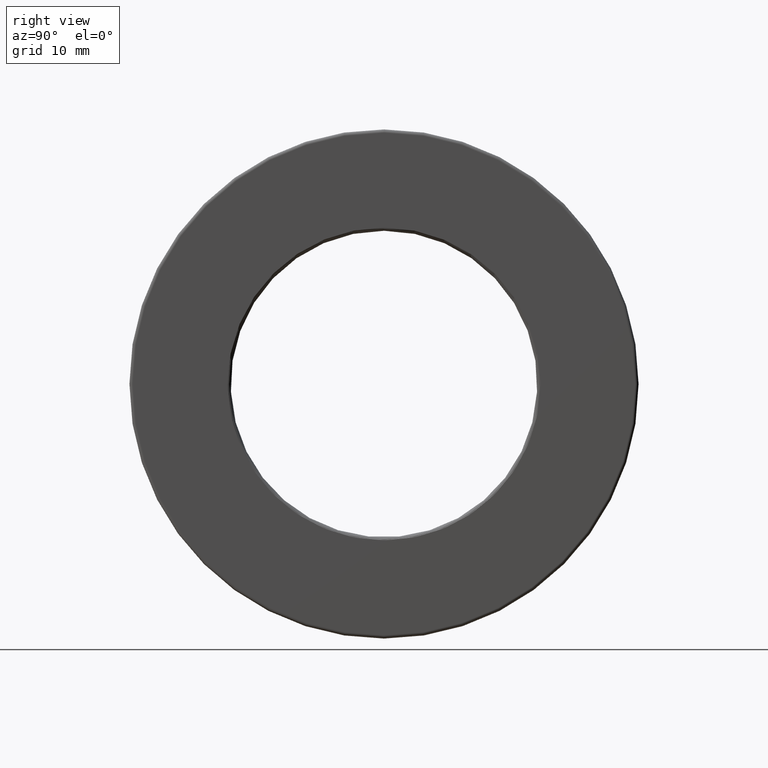
[diagram: clean part render]
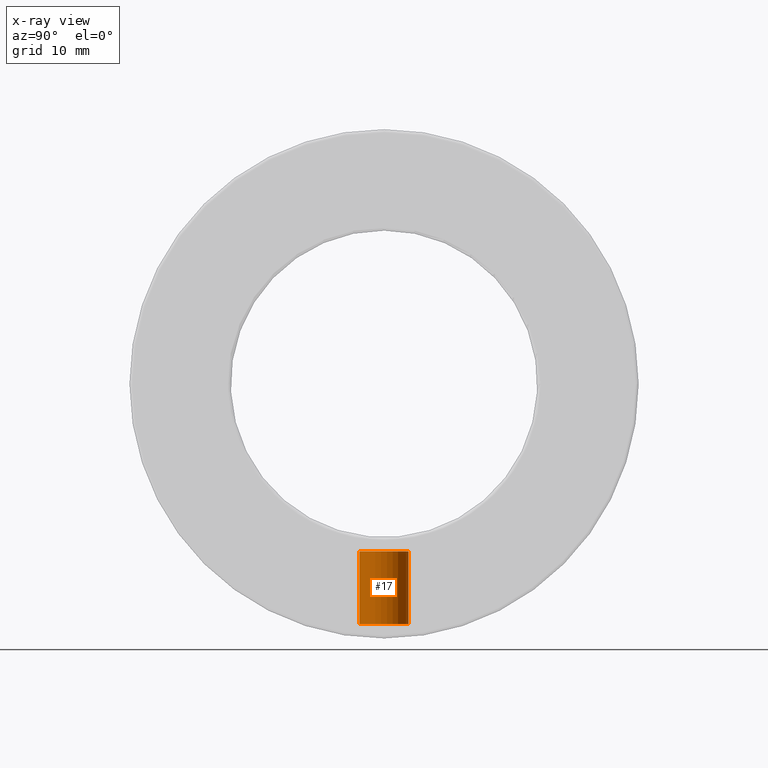
[diagram: x-ray — body ghosted, one internal face saturated and labeled with its STEP entity id]
A machine part, right view, then the same camera in x-ray: the body is ghosted and one INTERNAL B-rep face — a face not visible from any outside direction — is saturated and labeled: STEP entity #17.
In plain terms, the highlighted cylindrical surface (bore or boss wall) has radius 3.9624 mm, axis along (0, -0, -1).
Its self-contained STEP definition (entity closure, byte-faithful):
#17 = ADVANCED_FACE ( 'NONE', ( #832, #1301 ), #710, .T. ) ;
#35 = CIRCLE ( 'NONE', #1068, 0.1559999999999998600 ) ;
#122 = DIRECTION ( 'NONE',  ( 0.0000000000000000000, 1.000000000000000000, -3.502369222646491400E-015 ) ) ;
#438 = EDGE_LOOP ( 'NONE', ( #931 ) ) ;
#566 = CARTESIAN_POINT ( 'NONE',  ( 0.0000000000000000000, 0.1559999999999963100, -1.058750000000000700 ) ) ;
#626 = EDGE_CURVE ( 'NONE', #947, #947, #35, .T. ) ;
#664 = CARTESIAN_POINT ( 'NONE',  ( 0.0000000000000000000, -5.304869459204787800E-015, -1.519375000000000600 ) ) ;
#693 = DIRECTION ( 'NONE',  ( 0.0000000000000000000, -3.491481338843133400E-015, -1.000000000000000000 ) ) ;
#710 = CYLINDRICAL_SURFACE ( 'NONE', #849, 0.1559999999999999200 ) ;
#716 = CIRCLE ( 'NONE', #1030, 0.1560000000000000000 ) ;
#805 = DIRECTION ( 'NONE',  ( 0.0000000000000000000, 1.000000000000000000, -3.491481338843133400E-015 ) ) ;
#832 = FACE_OUTER_BOUND ( 'NONE', #438, .T. ) ;
#849 = AXIS2_PLACEMENT_3D ( 'NONE', #1366, #693, #805 ) ;
#880 = DIRECTION ( 'NONE',  ( 0.0000000000000000000, -3.491481338843133400E-015, -1.000000000000000000 ) ) ;
#931 = ORIENTED_EDGE ( 'NONE', *, *, #1468, .T. ) ;
#947 = VERTEX_POINT ( 'NONE', #1040 ) ;
#1030 = AXIS2_PLACEMENT_3D ( 'NONE', #1265, #1158, #122 ) ;
#1040 = CARTESIAN_POINT ( 'NONE',  ( 0.0000000000000000000, 0.1559999999999945600, -1.519375000000001000 ) ) ;
#1068 = AXIS2_PLACEMENT_3D ( 'NONE', #664, #880, #1230 ) ;
#1158 = DIRECTION ( 'NONE',  ( 0.0000000000000000000, -3.491481338843133400E-015, -1.000000000000000000 ) ) ;
#1230 = DIRECTION ( 'NONE',  ( 0.0000000000000000000, 1.000000000000000000, -3.502369222646494500E-015 ) ) ;
#1265 = CARTESIAN_POINT ( 'NONE',  ( 0.0000000000000000000, -3.696605867500168300E-015, -1.058750000000000100 ) ) ;
#1301 = FACE_OUTER_BOUND ( 'NONE', #1352, .T. ) ;
#1352 = EDGE_LOOP ( 'NONE', ( #1358 ) ) ;
#1358 = ORIENTED_EDGE ( 'NONE', *, *, #626, .F. ) ;
#1366 = CARTESIAN_POINT ( 'NONE',  ( 0.0000000000000000000, 0.0000000000000000000, 0.0000000000000000000 ) ) ;
#1457 = VERTEX_POINT ( 'NONE', #566 ) ;
#1468 = EDGE_CURVE ( 'NONE', #1457, #1457, #716, .T. ) ;